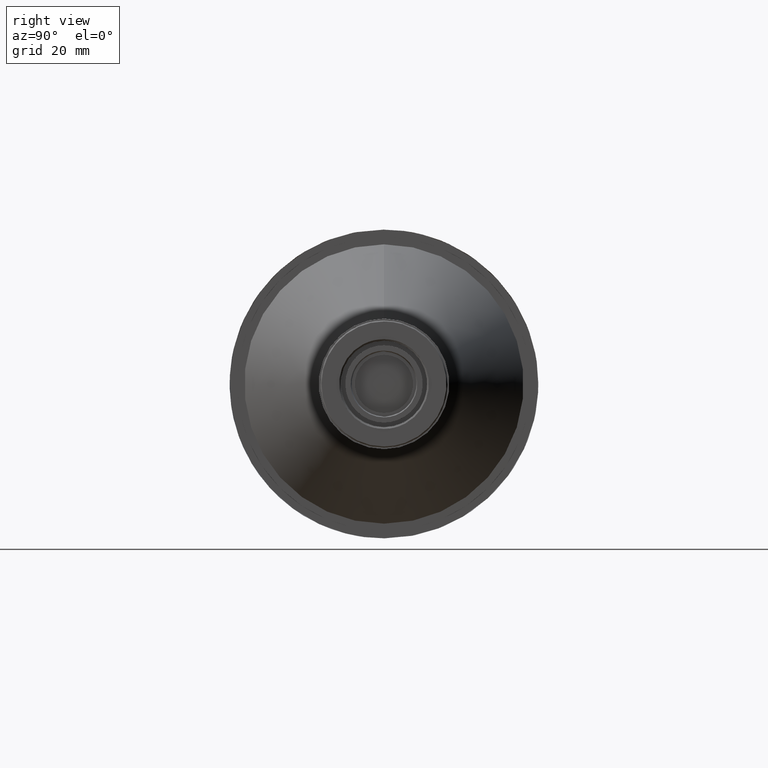
[diagram: clean part render]
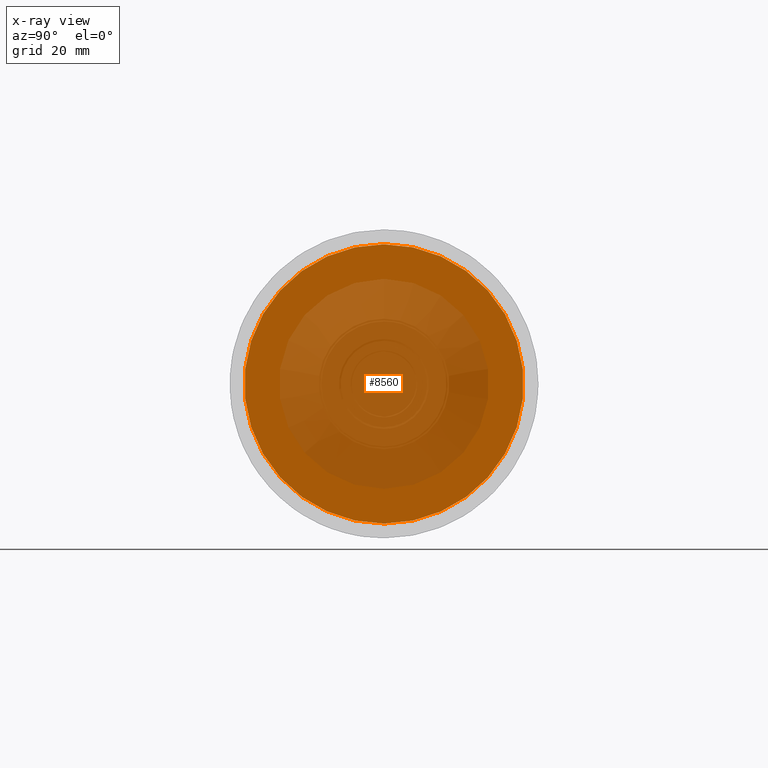
[diagram: x-ray — body ghosted, one internal face saturated and labeled with its STEP entity id]
A machine part, right view, then the same camera in x-ray: the body is ghosted and one INTERNAL B-rep face — a face not visible from any outside direction — is saturated and labeled: STEP entity #8560.
In plain terms, the highlighted planar face has unit normal (1, 0, 0).
Its self-contained STEP definition (entity closure, byte-faithful):
#836 = PLANE ( 'NONE',  #8895 ) ;
#956 = CARTESIAN_POINT ( 'NONE',  ( 19.87470247999999984, 0.000000000000000000, -164.1114151909999919 ) ) ;
#1009 = DIRECTION ( 'NONE',  ( 0.000000000000000000, 0.000000000000000000, -1.000000000000000000 ) ) ;
#1771 = DIRECTION ( 'NONE',  ( 1.000000000000000000, 0.000000000000000000, 0.000000000000000000 ) ) ;
#2447 = EDGE_CURVE ( 'NONE', #9585, #5575, #4609, .T. ) ;
#2597 = ORIENTED_EDGE ( 'NONE', *, *, #2447, .F. ) ;
#2663 = EDGE_CURVE ( 'NONE', #5575, #9585, #10328, .T. ) ;
#3238 = AXIS2_PLACEMENT_3D ( 'NONE', #956, #1771, #1009 ) ;
#4202 = CARTESIAN_POINT ( 'NONE',  ( 19.87470247999999984, 0.000000000000000000, -164.1114151909999919 ) ) ;
#4609 = CIRCLE ( 'NONE', #5313, 39.54917119181519780 ) ;
#4846 = ORIENTED_EDGE ( 'NONE', *, *, #2663, .F. ) ;
#5233 = EDGE_LOOP ( 'NONE', ( #4846, #2597 ) ) ;
#5313 = AXIS2_PLACEMENT_3D ( 'NONE', #10438, #5636, #9574 ) ;
#5356 = CARTESIAN_POINT ( 'NONE',  ( 19.87470247999999984, -4.843376590898720089E-15, -124.5622439991848012 ) ) ;
#5575 = VERTEX_POINT ( 'NONE', #10240 ) ;
#5636 = DIRECTION ( 'NONE',  ( 1.000000000000000000, 0.000000000000000000, 0.000000000000000000 ) ) ;
#6001 = DIRECTION ( 'NONE',  ( 1.000000000000000000, 0.000000000000000000, 0.000000000000000000 ) ) ;
#7449 = DIRECTION ( 'NONE',  ( 0.000000000000000000, 1.000000000000000000, 0.000000000000000000 ) ) ;
#8374 = FACE_OUTER_BOUND ( 'NONE', #5233, .T. ) ;
#8560 = ADVANCED_FACE ( 'NONE', ( #8374 ), #836, .F. ) ;
#8895 = AXIS2_PLACEMENT_3D ( 'NONE', #4202, #6001, #7449 ) ;
#9574 = DIRECTION ( 'NONE',  ( 0.000000000000000000, 0.000000000000000000, -1.000000000000000000 ) ) ;
#9585 = VERTEX_POINT ( 'NONE', #5356 ) ;
#10240 = CARTESIAN_POINT ( 'NONE',  ( 19.87470247999999984, 0.000000000000000000, -203.6605863828152110 ) ) ;
#10328 = CIRCLE ( 'NONE', #3238, 39.54917119181519780 ) ;
#10438 = CARTESIAN_POINT ( 'NONE',  ( 19.87470247999999984, 0.000000000000000000, -164.1114151909999919 ) ) ;